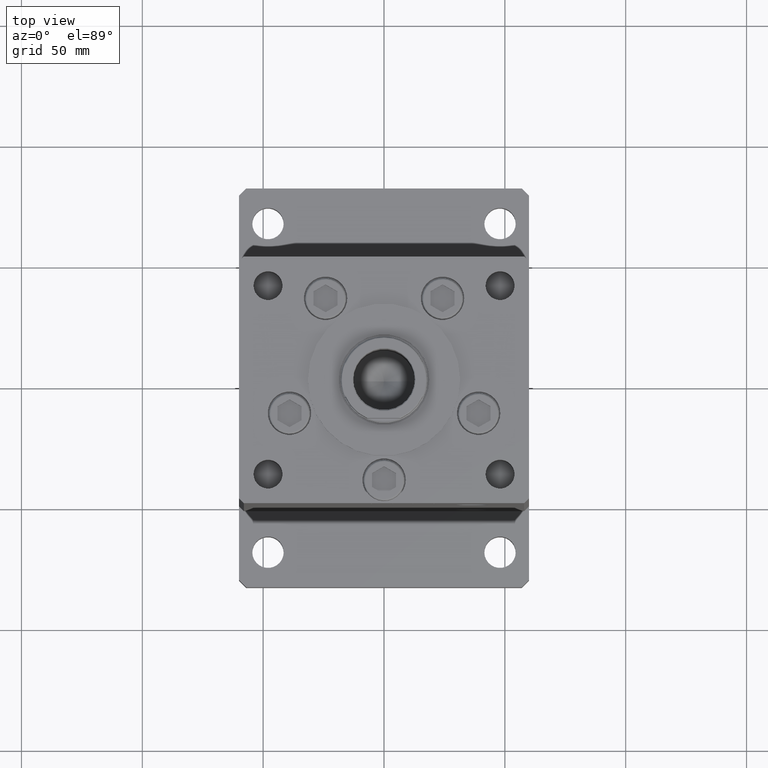
[diagram: clean part render]
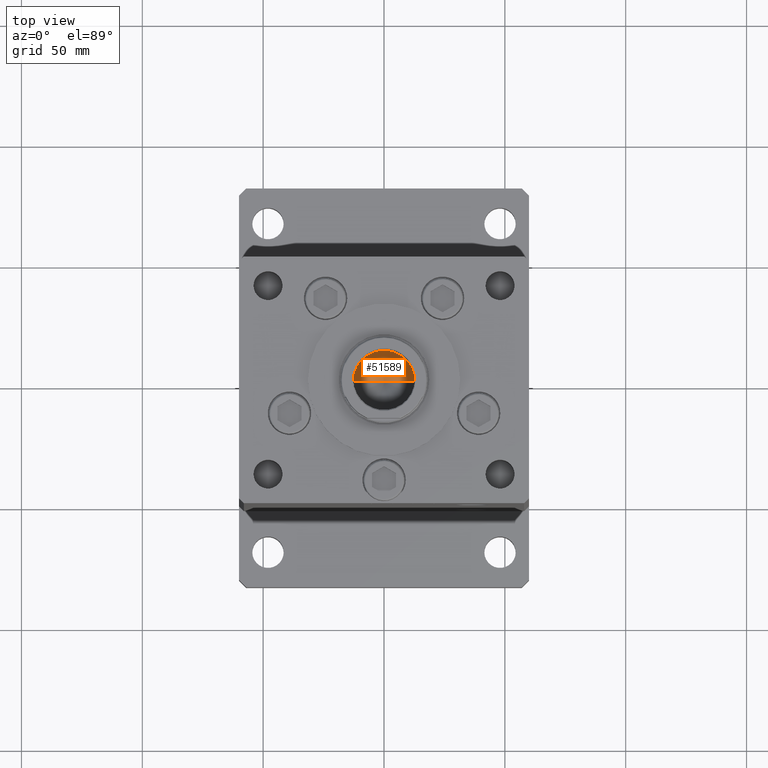
[diagram: same view with one face highlighted and labeled with its STEP entity id]
A machine part, top view. The second image highlights one B-rep face of the part: STEP entity #51589.
In plain terms, the highlighted conical surface has half-angle 59 deg.
Its self-contained STEP definition (entity closure, byte-faithful):
#419 = CARTESIAN_POINT ( 'NONE',  ( 0.000000000000000000, 0.000000000000000000, 124.2500000000000142 ) ) ;
#1229 = EDGE_CURVE ( 'NONE', #38261, #3177, #27599, .T. ) ;
#2135 = AXIS2_PLACEMENT_3D ( 'NONE', #419, #5819, #37550 ) ;
#3083 = AXIS2_PLACEMENT_3D ( 'NONE', #6293, #38811, #34756 ) ;
#3177 = VERTEX_POINT ( 'NONE', #26589 ) ;
#4094 = VERTEX_POINT ( 'NONE', #26142 ) ;
#5819 = DIRECTION ( 'NONE',  ( -0.000000000000000000, -0.000000000000000000, 1.000000000000000000 ) ) ;
#5982 = VECTOR ( 'NONE', #25072, 1000.000000000000000 ) ;
#6293 = CARTESIAN_POINT ( 'NONE',  ( 0.000000000000000000, 0.000000000000000000, 124.2500000000000142 ) ) ;
#6958 = EDGE_CURVE ( 'NONE', #38261, #4094, #45709, .T. ) ;
#8570 = CARTESIAN_POINT ( 'NONE',  ( 12.74999999999999112, 0.000000000000000000, 124.2500000000000142 ) ) ;
#11640 = DIRECTION ( 'NONE',  ( -0.8571673007021117785, 1.049727191138617956E-16, 0.5150380749100550437 ) ) ;
#14344 = CIRCLE ( 'NONE', #3083, 12.74999999999999112 ) ;
#25072 = DIRECTION ( 'NONE',  ( 0.8571673007021117785, 0.000000000000000000, 0.5150380749100550437 ) ) ;
#25596 = FACE_OUTER_BOUND ( 'NONE', #38614, .T. ) ;
#26142 = CARTESIAN_POINT ( 'NONE',  ( 12.74999999999999112, 0.000000000000000000, 124.2500000000000142 ) ) ;
#26589 = CARTESIAN_POINT ( 'NONE',  ( -12.74999999999999112, 1.561424668912874125E-15, 124.2500000000000142 ) ) ;
#27599 = LINE ( 'NONE', #52312, #34500 ) ;
#28273 = ORIENTED_EDGE ( 'NONE', *, *, #53622, .T. ) ;
#31577 = CONICAL_SURFACE ( 'NONE', #2135, 12.74999999999999112, 1.029744258676653423 ) ;
#34500 = VECTOR ( 'NONE', #11640, 1000.000000000000000 ) ;
#34756 = DIRECTION ( 'NONE',  ( 1.000000000000000000, 0.000000000000000000, 0.000000000000000000 ) ) ;
#37550 = DIRECTION ( 'NONE',  ( 1.000000000000000000, 0.000000000000000000, 0.000000000000000000 ) ) ;
#38261 = VERTEX_POINT ( 'NONE', #40838 ) ;
#38614 = EDGE_LOOP ( 'NONE', ( #49019, #47890, #28273 ) ) ;
#38811 = DIRECTION ( 'NONE',  ( -0.000000000000000000, -0.000000000000000000, 1.000000000000000000 ) ) ;
#40838 = CARTESIAN_POINT ( 'NONE',  ( -1.307202896762960287E-14, 0.000000000000000000, 116.5890271073986213 ) ) ;
#45709 = LINE ( 'NONE', #8570, #5982 ) ;
#47890 = ORIENTED_EDGE ( 'NONE', *, *, #6958, .T. ) ;
#49019 = ORIENTED_EDGE ( 'NONE', *, *, #1229, .F. ) ;
#51589 = ADVANCED_FACE ( 'NONE', ( #25596 ), #31577, .F. ) ;
#52312 = CARTESIAN_POINT ( 'NONE',  ( -12.74999999999999112, 1.561424668912874125E-15, 124.2500000000000142 ) ) ;
#53622 = EDGE_CURVE ( 'NONE', #4094, #3177, #14344, .T. ) ;